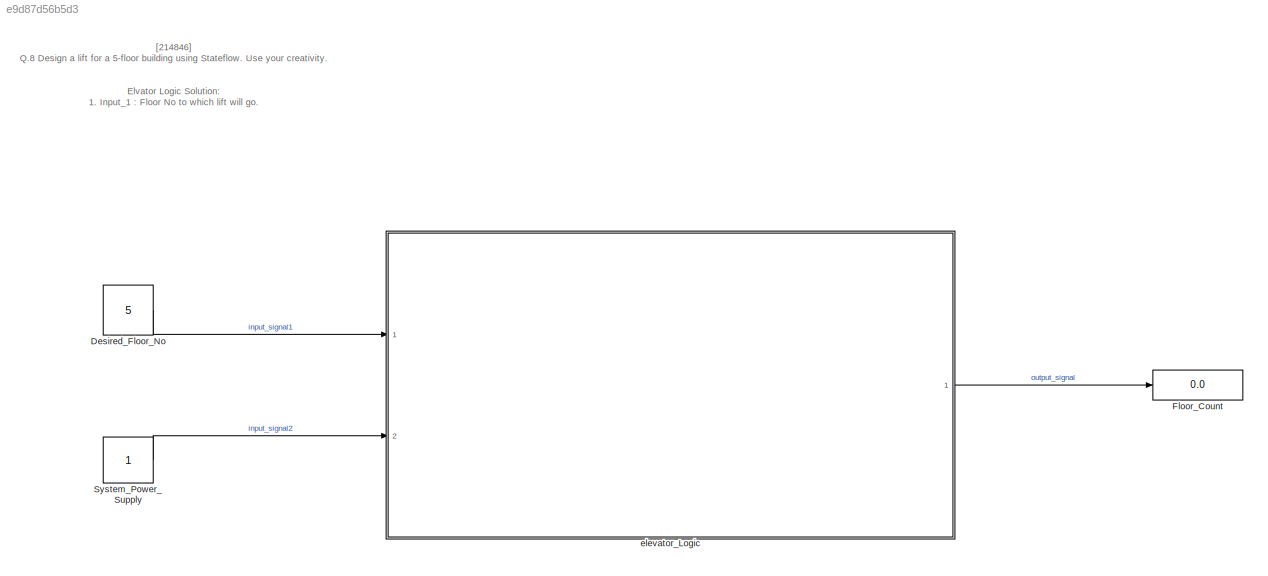
MODEL slx_e9d87d56b5d3
KIND model
CONFIG AbsTol = auto
CONFIG EnableMultiTasking = off
CONFIG FixedStep = auto
CONFIG MaxStep = auto
CONFIG MinStep = auto
CONFIG RelTol = 1e-3
CONFIG SampleTimeConstraint = Unconstrained
CONFIG Solver = VariableStepAuto
CONFIG SolverName = VariableStepAuto
CONFIG StartTime = 0.0
CONFIG StopTime = 10.0
BLOCK [Constant] Desired_Floor_No
  Value = 5
BLOCK [Display] Floor_Count
  Decimation = 1
  Ports = [1]
BLOCK [Constant] System_Power_Supply
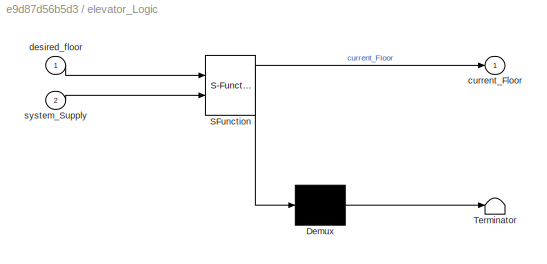
BLOCK [SubSystem] elevator_Logic
  ErrorFcn = Stateflow.Translate.translate
  PermitHierarchicalResolution = ExplicitOnly
  Ports = [2, 1]
  RequestExecContextInheritance = off
  SFBlockType = Chart
  TreatAsAtomicUnit = on
BLOCK [Demux] elevator_Logic/ Demux 
  Outputs = 1
  Ports = [1, 1]
BLOCK [S-Function] elevator_Logic/ SFunction 
  EnableBusSupport = on
  FunctionName = sf_sfun
  PortCounts = [2 2]
  Ports = [2, 2]
  SFcnIsStateOwnerBlock = off
  SFunctionDeploymentMode = off
  Tag = Stateflow S-Function 3
BLOCK [Terminator] elevator_Logic/ Terminator 
BLOCK [Outport] elevator_Logic/current_Floor
BLOCK [Inport] elevator_Logic/desired_floor
BLOCK [Inport] elevator_Logic/system_Supply
  Port = 2
ANNOTATION (root): [214846] Q.8 Design a lift for a 5-floor building using Stateflow. Use your creativity. Elvator Logic Solution: 1. Input_1 : Floor No to which lift will go. 2. Input_2: Power Supply [ON ::1, OFF ::0] Working : System will check the power supply, if Power supply =ON then elevator goes to desired floor either moving up or down depending upon current floor. if Power Supply =OFF Elevator remains in fi...<+63ch>
LINE Desired_Floor_No:1 -> elevator_Logic:1
LINE System_Power_Supply:1 -> elevator_Logic:2
LINE elevator_Logic:1 -> Floor_Count:1
CHART elevator_Logic states=8 transitions=10
  STATE_LABEL 'elevator_OnOff_state'
  STATE_LABEL 'Idle\ncurrent_Floor=0;'
  STATE_LABEL 'Active'
  STATE_LABEL '{current_Floor=1;}'
  STATE_LABEL '[system_Supply ==1]'
  STATE_LABEL '[system_Supply==0]'
  STATE_LABEL 'Idle\ncurrent_Floor=0;'
  STATE_LABEL 'Active'
  STATE_LABEL 'elevator_Run_state\n'
  STATE_LABEL 'goUP_floor\ndu:\ncurrent_Floor=current_Floor+1;'
  STATE_LABEL 'entrance_logic\n'
  STATE_LABEL 'goDOWN_floor\ndu:\ncurrent_Floor=current_Floor-1;'
  STATE_LABEL 'Wait\n'
  STATE_LABEL '[desired_floor>current_Floor]'
  STATE_LABEL '[desired_floor<current_Floor]'
  STATE_LABEL '[current_Floor==desired_floor]'
  STATE_LABEL 'after(3,sec)'
  STATE_LABEL '[current_Floor==desired_floor]'
  STATE_LABEL 'goUP_floor\ndu:\ncurrent_Floor=current_Floor+1;'
  STATE_LABEL 'entrance_logic\n'
  STATE_LABEL 'goDOWN_floor\ndu:\ncurrent_Floor=current_Floor-1;'
  STATE_LABEL 'Wait\n'
CHART  states=0 transitions=0
